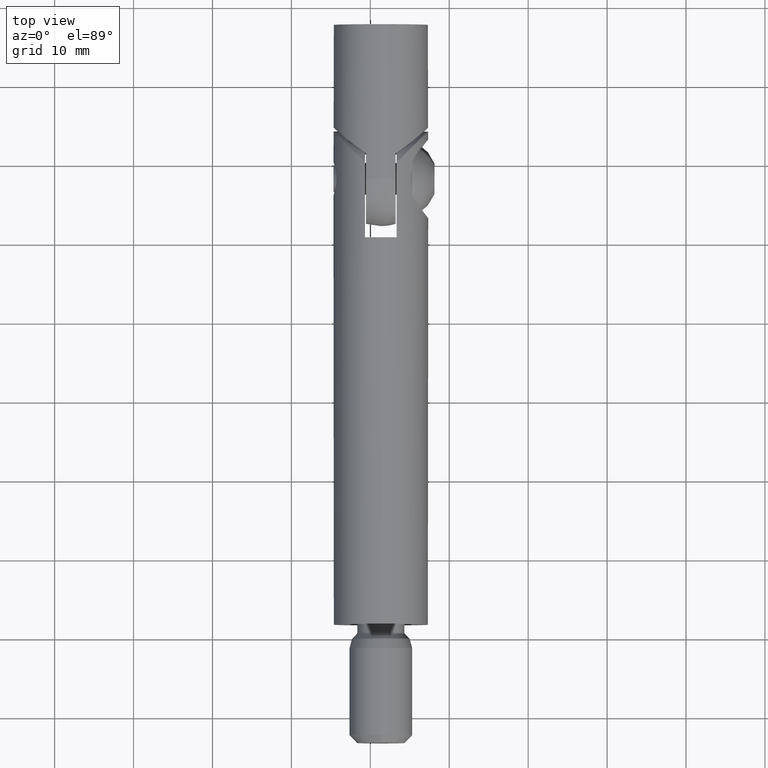
[diagram: clean part render]
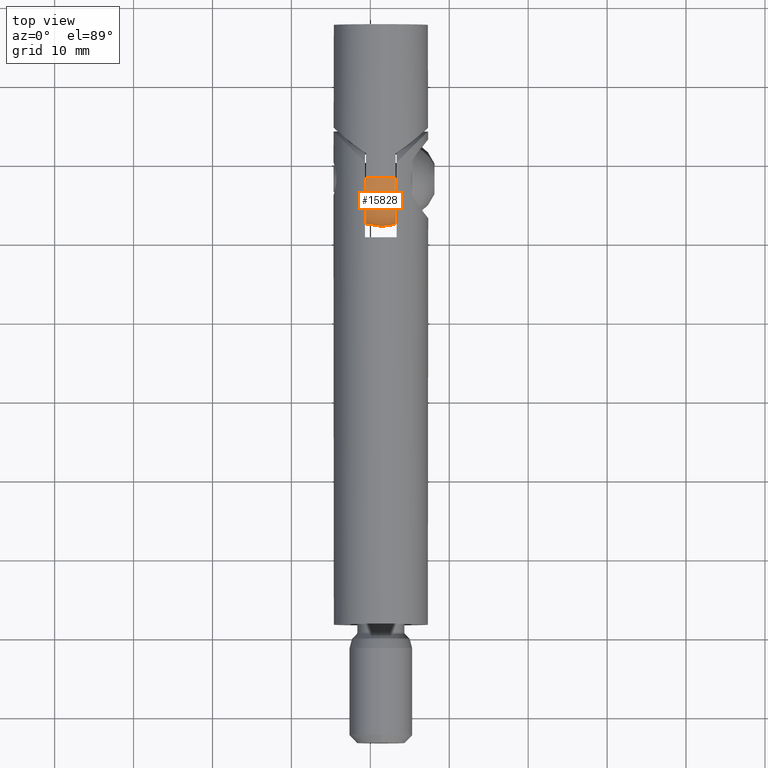
[diagram: same view with one face highlighted and labeled with its STEP entity id]
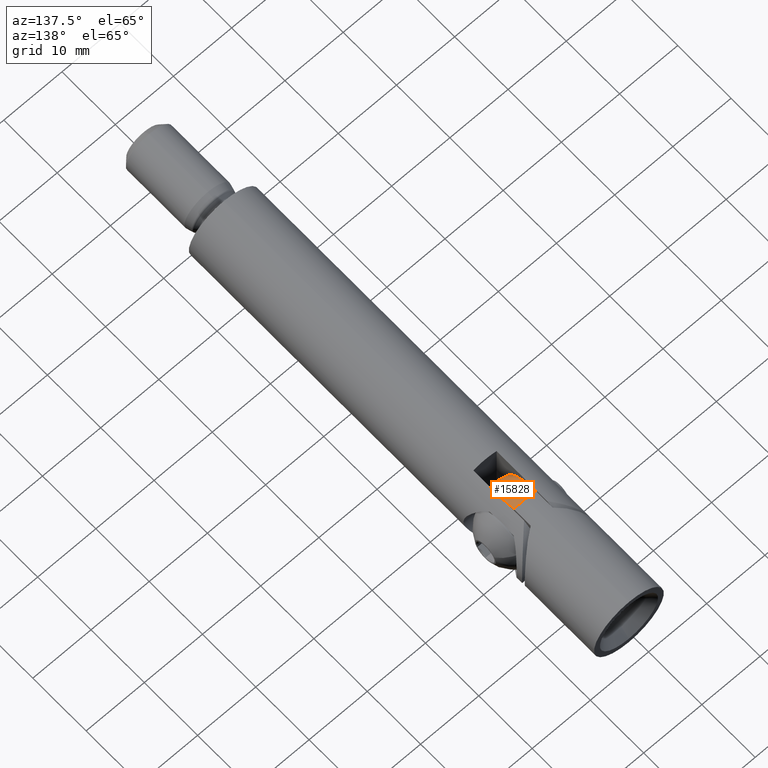
[diagram: same view with one face highlighted and labeled with its STEP entity id]
A machine part, top view. The second image highlights one B-rep face of the part: STEP entity #15828.
A second angle (auxiliary view) of the same face is appended — the face is thin or edge-on in the first view.
In plain terms, the highlighted spherical surface has radius 6 mm.
Its self-contained STEP definition (entity closure, byte-faithful):
#49 = EDGE_LOOP ( 'NONE', ( #7989, #3046, #5752, #2219, #8735, #14470 ) ) ;
#244 = CARTESIAN_POINT ( 'NONE',  ( 0.0000000000000000000, 6.000000000000005300, 0.0000000000000000000 ) ) ;
#515 = CIRCLE ( 'NONE', #10108, 6.000000000000000900 ) ;
#692 = SPHERICAL_SURFACE ( 'NONE', #13576, 6.000000000000000000 ) ;
#884 = DIRECTION ( 'NONE',  ( 0.0000000000000000000, 0.0000000000000000000, 1.000000000000000000 ) ) ;
#898 = FACE_OUTER_BOUND ( 'NONE', #49, .T. ) ;
#1700 = CARTESIAN_POINT ( 'NONE',  ( 0.0000000000000000000, 6.000000000000005300, 0.0000000000000000000 ) ) ;
#1860 = EDGE_CURVE ( 'NONE', #3397, #6663, #8950, .T. ) ;
#2073 = CARTESIAN_POINT ( 'NONE',  ( 7.347880794884120700E-016, 6.000000000000005300, 6.000000000000000900 ) ) ;
#2219 = ORIENTED_EDGE ( 'NONE', *, *, #10076, .F. ) ;
#2638 = VERTEX_POINT ( 'NONE', #2073 ) ;
#2891 = DIRECTION ( 'NONE',  ( -1.776356839400250500E-015, 0.0000000000000000000, -1.000000000000000000 ) ) ;
#2899 = CARTESIAN_POINT ( 'NONE',  ( 1.875000000000001800, 6.000000000000005300, -3.851859888774471700E-031 ) ) ;
#2946 = VERTEX_POINT ( 'NONE', #10747 ) ;
#3046 = ORIENTED_EDGE ( 'NONE', *, *, #11940, .F. ) ;
#3115 = CIRCLE ( 'NONE', #3136, 6.000000000000000900 ) ;
#3136 = AXIS2_PLACEMENT_3D ( 'NONE', #1700, #9531, #2891 ) ;
#3397 = VERTEX_POINT ( 'NONE', #3787 ) ;
#3787 = CARTESIAN_POINT ( 'NONE',  ( -1.875000000000001800, 6.000000000000005300, -5.699506557588999400 ) ) ;
#4324 = DIRECTION ( 'NONE',  ( 2.696301922142130200E-033, 0.0000000000000000000, -1.000000000000000000 ) ) ;
#4870 = EDGE_CURVE ( 'NONE', #2638, #6960, #7295, .T. ) ;
#5270 = VERTEX_POINT ( 'NONE', #14322 ) ;
#5752 = ORIENTED_EDGE ( 'NONE', *, *, #16709, .F. ) ;
#6060 = AXIS2_PLACEMENT_3D ( 'NONE', #13100, #6522, #7834 ) ;
#6152 = DIRECTION ( 'NONE',  ( -2.346127560947634700E-084, 1.000000000000000000, -8.701279117450272000E-052 ) ) ;
#6206 = CARTESIAN_POINT ( 'NONE',  ( 0.0000000000000000000, 6.000000000000005300, 0.0000000000000000000 ) ) ;
#6522 = DIRECTION ( 'NONE',  ( 6.270394377842564300E-033, 1.000000000000000000, -5.200459125639017200E-051 ) ) ;
#6663 = VERTEX_POINT ( 'NONE', #11933 ) ;
#6790 = DIRECTION ( 'NONE',  ( 6.270394377842564300E-033, 1.000000000000000000, -5.200459125639017200E-051 ) ) ;
#6833 = DIRECTION ( 'NONE',  ( 4.440892098500626200E-015, 0.0000000000000000000, -1.000000000000000000 ) ) ;
#6960 = VERTEX_POINT ( 'NONE', #9176 ) ;
#7295 = CIRCLE ( 'NONE', #6060, 6.000000000000000900 ) ;
#7834 = DIRECTION ( 'NONE',  ( 2.696301922142130200E-033, 0.0000000000000000000, -1.000000000000000000 ) ) ;
#7971 = DIRECTION ( 'NONE',  ( 6.270394377842564300E-033, 1.000000000000000000, -5.200459125639017200E-051 ) ) ;
#7989 = ORIENTED_EDGE ( 'NONE', *, *, #1860, .F. ) ;
#8137 = CARTESIAN_POINT ( 'NONE',  ( 0.0000000000000000000, 6.000000000000005300, 0.0000000000000000000 ) ) ;
#8641 = CARTESIAN_POINT ( 'NONE',  ( -1.875000000000001800, 6.000000000000005300, -3.851859888774471700E-031 ) ) ;
#8735 = ORIENTED_EDGE ( 'NONE', *, *, #4870, .F. ) ;
#8773 = AXIS2_PLACEMENT_3D ( 'NONE', #8641, #16477, #884 ) ;
#8950 = CIRCLE ( 'NONE', #8773, 5.699506557588998500 ) ;
#9131 = CIRCLE ( 'NONE', #10542, 5.699506557588998500 ) ;
#9176 = CARTESIAN_POINT ( 'NONE',  ( 1.875000000000001800, 6.000000000000005300, 5.699506557588999400 ) ) ;
#9372 = DIRECTION ( 'NONE',  ( 1.000000000000000000, 6.270394377842561500E-033, -2.696301922142130200E-033 ) ) ;
#9511 = CIRCLE ( 'NONE', #16156, 6.000000000000000900 ) ;
#9531 = DIRECTION ( 'NONE',  ( 6.270394377842564300E-033, 1.000000000000000000, -5.200459125639017200E-051 ) ) ;
#10076 = EDGE_CURVE ( 'NONE', #6960, #2946, #9131, .T. ) ;
#10108 = AXIS2_PLACEMENT_3D ( 'NONE', #8137, #7971, #6833 ) ;
#10542 = AXIS2_PLACEMENT_3D ( 'NONE', #2899, #9372, #13240 ) ;
#10747 = CARTESIAN_POINT ( 'NONE',  ( 1.875000000000001800, 6.000000000000005300, -5.699506557588999400 ) ) ;
#11372 = DIRECTION ( 'NONE',  ( 1.000000000000000000, 0.0000000000000000000, -2.696301922142130200E-033 ) ) ;
#11933 = CARTESIAN_POINT ( 'NONE',  ( -1.875000000000001800, 6.000000000000005300, 5.699506557588999400 ) ) ;
#11940 = EDGE_CURVE ( 'NONE', #5270, #3397, #9511, .T. ) ;
#13007 = EDGE_CURVE ( 'NONE', #6663, #2638, #515, .T. ) ;
#13100 = CARTESIAN_POINT ( 'NONE',  ( 0.0000000000000000000, 6.000000000000005300, 0.0000000000000000000 ) ) ;
#13240 = DIRECTION ( 'NONE',  ( 0.0000000000000000000, 0.0000000000000000000, -1.000000000000000000 ) ) ;
#13576 = AXIS2_PLACEMENT_3D ( 'NONE', #6206, #6152, #11372 ) ;
#14322 = CARTESIAN_POINT ( 'NONE',  ( -4.495853365111217700E-032, 6.000000000000005300, -6.000000000000000900 ) ) ;
#14470 = ORIENTED_EDGE ( 'NONE', *, *, #13007, .F. ) ;
#15828 = ADVANCED_FACE ( 'NONE', ( #898 ), #692, .T. ) ;
#16156 = AXIS2_PLACEMENT_3D ( 'NONE', #244, #6790, #4324 ) ;
#16477 = DIRECTION ( 'NONE',  ( -1.000000000000000000, -6.270394377842561500E-033, 2.696301922142130200E-033 ) ) ;
#16709 = EDGE_CURVE ( 'NONE', #2946, #5270, #3115, .T. ) ;